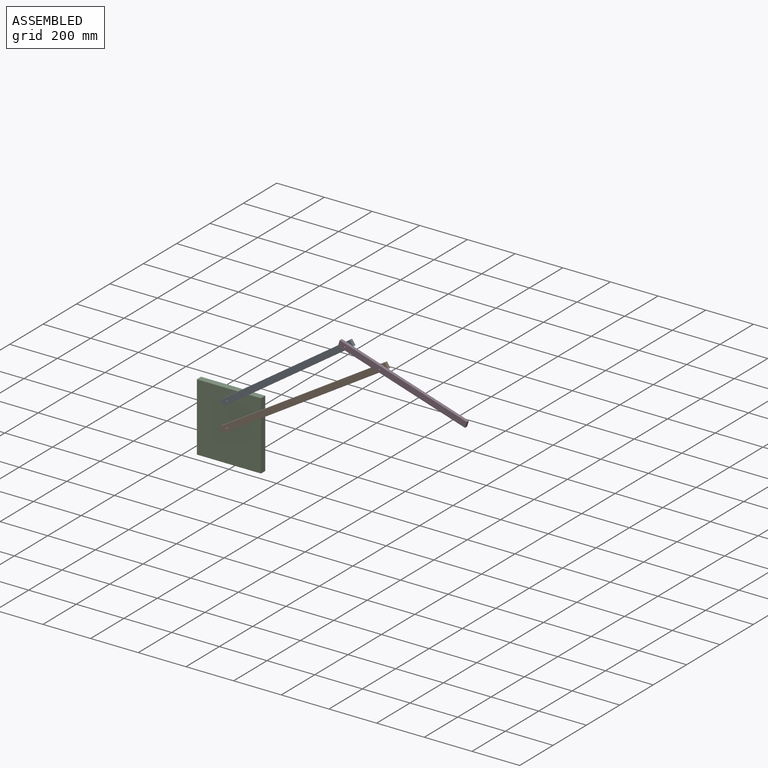
[diagram: assembled view]
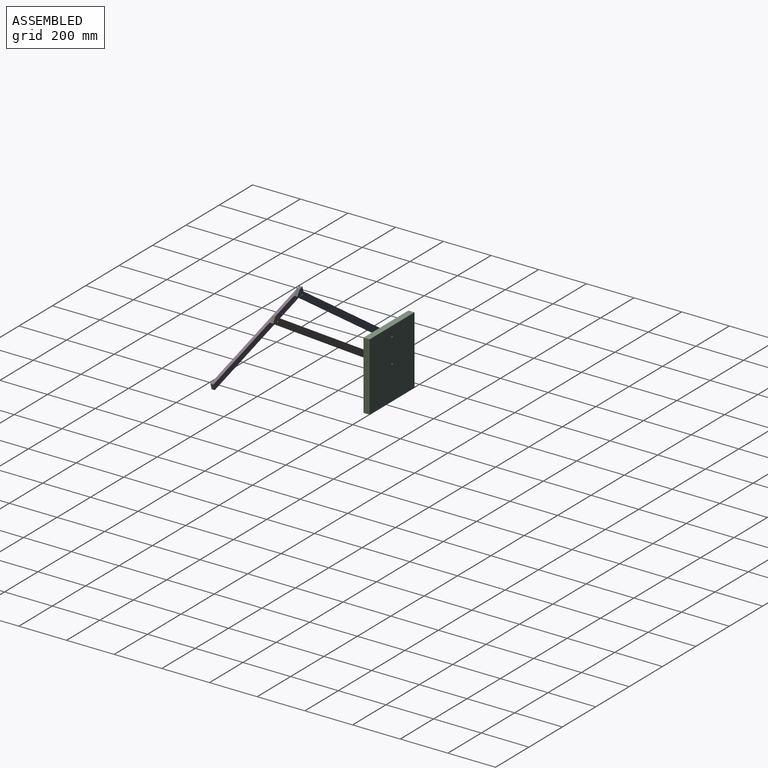
[diagram: assembled view, second angle]
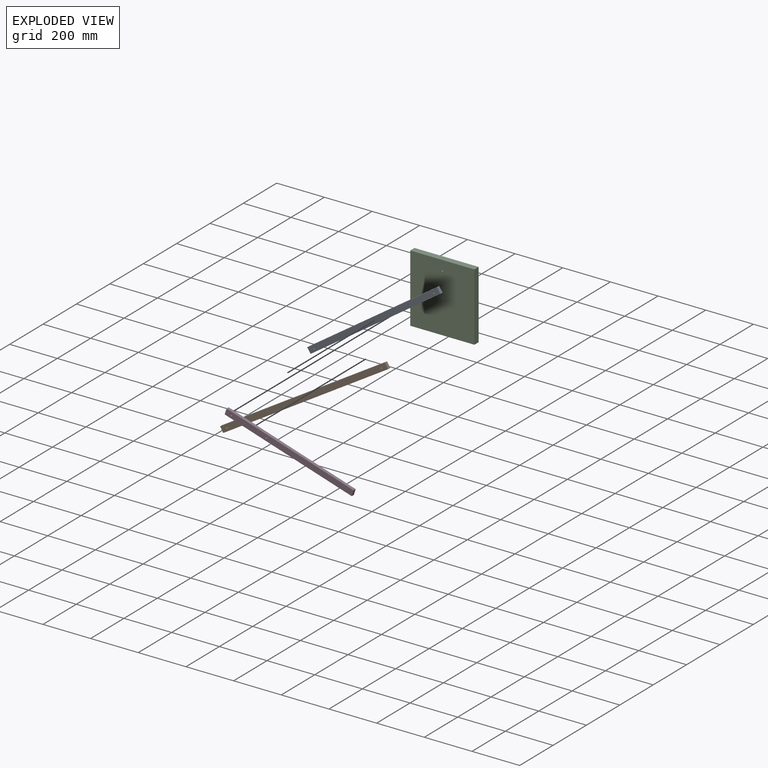
[diagram: exploded view]
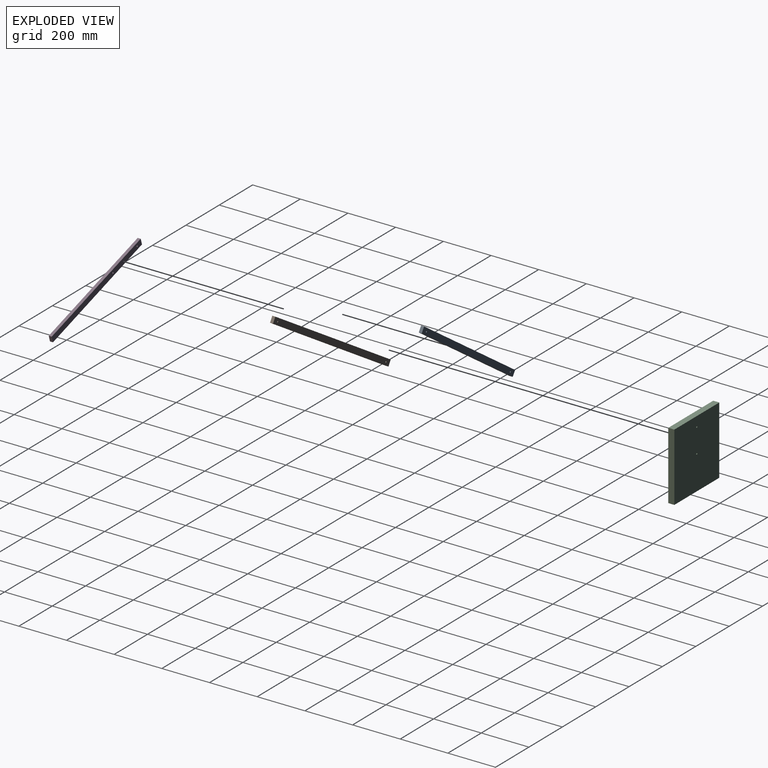
[diagram: exploded view, second angle]
ASSEMBLY  parts=4 mates=4
PART A: 8 faces, bbox 631.1x12.7x244.1 mm
  f0: plane 622.63x220.13mm, normal (-0.33,0,0.94), area 8387.1mm2, adj f1,f5,f6,f7
  f1: plane 23.95x12.7mm, normal (-0.94,0,-0.33), area 322.6mm2, adj f0,f2,f6,f7
  f2: plane 622.63x220.13mm, normal (0.33,0,-0.94), area 8387.1mm2, adj f1,f5,f6,f7
  f3: cylinder r=3.17mm len=12.7mm, axis (0,1,0), area 253.4mm2, adj f6,f7
  f4: cylinder r=3.17mm len=12.7mm, axis (0,1,0), area 253.4mm2, adj f6,f7
  f5: plane 23.95x12.7mm, normal (0.94,0,0.33), area 322.6mm2, adj f0,f2,f6,f7
  f6: plane 631.1x244.08mm, normal (0,-1,0), area 16710.8mm2, adj f0,f1,f2,f3,f4,f5
  f7: plane 631.1x244.08mm, normal (0,1,0), area 16710.8mm2, adj f0,f1,f2,f3,f4,f5
PART B: 8 faces, bbox 774.8x12.7x294.9 mm
  f0: plane 766.32x270.93mm, normal (-0.33,0,0.94), area 10322.6mm2, adj f1,f5,f6,f7
  f1: plane 23.95x12.7mm, normal (-0.94,0,-0.33), area 322.6mm2, adj f0,f2,f6,f7
  f2: plane 766.32x270.93mm, normal (0.33,0,-0.94), area 10322.6mm2, adj f1,f5,f6,f7
  f3: cylinder r=3.17mm len=12.7mm, axis (0,1,0), area 253.4mm2, adj f6,f7
  f4: cylinder r=3.17mm len=12.7mm, axis (0,1,0), area 253.4mm2, adj f6,f7
  f5: plane 23.95x12.7mm, normal (0.94,0,0.33), area 322.6mm2, adj f0,f2,f6,f7
  f6: plane 774.78x294.88mm, normal (0,-1,0), area 20581.8mm2, adj f0,f1,f2,f3,f4,f5
  f7: plane 774.78x294.88mm, normal (0,1,0), area 20581.8mm2, adj f0,f1,f2,f3,f4,f5
PART C: 8 faces, bbox 269.3x25.4x285.5 mm
  f0: plane 285.48x25.4mm, normal (1,0,0), area 7251.2mm2, adj f1,f5,f6,f7
  f1: plane 269.26x25.4mm, normal (0,0,1), area 6839.2mm2, adj f0,f2,f6,f7
  f2: plane 285.48x25.4mm, normal (-1,0,0), area 7251.2mm2, adj f1,f5,f6,f7
  f3: cylinder r=3.17mm len=25.4mm, axis (0,-1,0), area 506.7mm2, adj f6,f7
  f4: cylinder r=3.17mm len=25.4mm, axis (0,-1,0), area 506.7mm2, adj f6,f7
  f5: plane 269.26x25.4mm, normal (0,0,-1), area 6839.2mm2, adj f0,f2,f6,f7
  f6: plane 285.48x269.26mm, normal (0,1,0), area 76805mm2, adj f0,f1,f2,f3,f4,f5
  f7: plane 285.48x269.26mm, normal (0,-1,0), area 76805mm2, adj f0,f1,f2,f3,f4,f5
PART D: 8 faces, bbox 535.3x12.7x210.2 mm
  f0: plane 526.84x186.27mm, normal (0.33,0,0.94), area 7096.8mm2, adj f1,f4,f6,f7
  f1: plane 23.95x12.7mm, normal (-0.94,0,0.33), area 322.6mm2, adj f0,f2,f6,f7
  f2: plane 526.84x186.27mm, normal (-0.33,0,-0.94), area 7096.8mm2, adj f1,f4,f6,f7
  f3: cylinder r=3.17mm len=12.7mm, axis (0,1,0), area 253.4mm2, adj f6,f7
  f4: plane 23.95x12.7mm, normal (0.94,0,-0.33), area 322.6mm2, adj f0,f2,f6,f7
  f5: cylinder r=3.17mm len=12.7mm, axis (0,1,0), area 253.4mm2, adj f6,f7
  f6: plane 535.31x210.21mm, normal (0,-1,0), area 14130.2mm2, adj f0,f1,f2,f3,f4,f5
  f7: plane 535.31x210.21mm, normal (0,1,0), area 14130.2mm2, adj f0,f1,f2,f3,f4,f5
PLACE A rot(axis=(0,-1,0),14.9deg) t=(26.16,0,3.42)mm
PLACE B rot(axis=(0,-1,0),12.2deg) t=(0,0,0)mm
PLACE C at identity fixed
PLACE D rot(axis=(0,-1,0),2deg) t=(-60.57,0,121.02)mm
MATE revolute D.f5 <-> A.f4  axis (0,1,0) through (503.05,-12.7,445.91)mm
MATE revolute C.f3 <-> A.f3  axis (0,-1,0) through (0,0,101.6)mm
MATE revolute D.f3 <-> B.f4  axis (0,1,0) through (648.44,-12.7,400.21)mm
MATE revolute C.f4 <-> B.f3  axis (0,-1,0) through (0,0,0)mm
